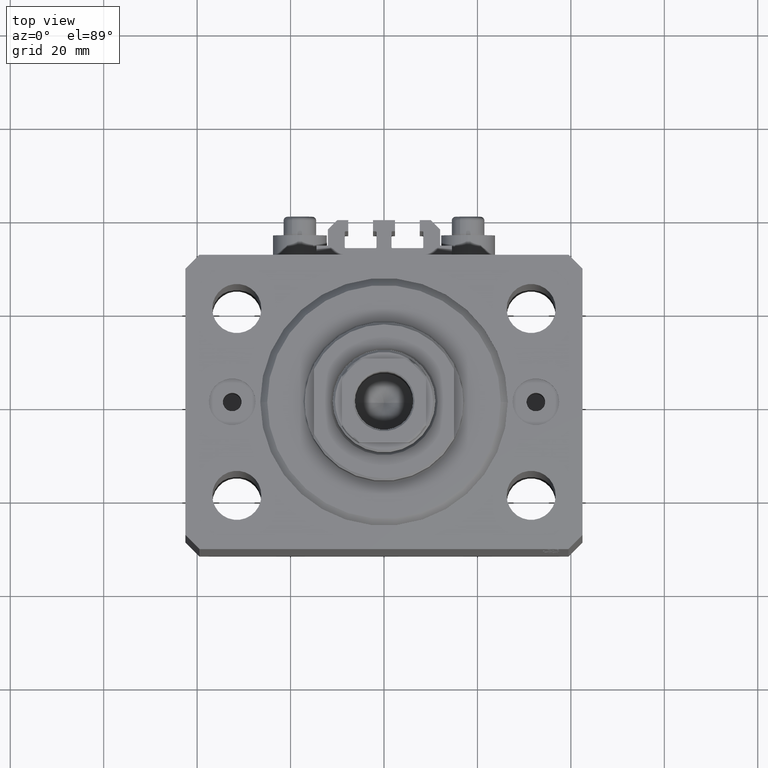
[diagram: clean part render]
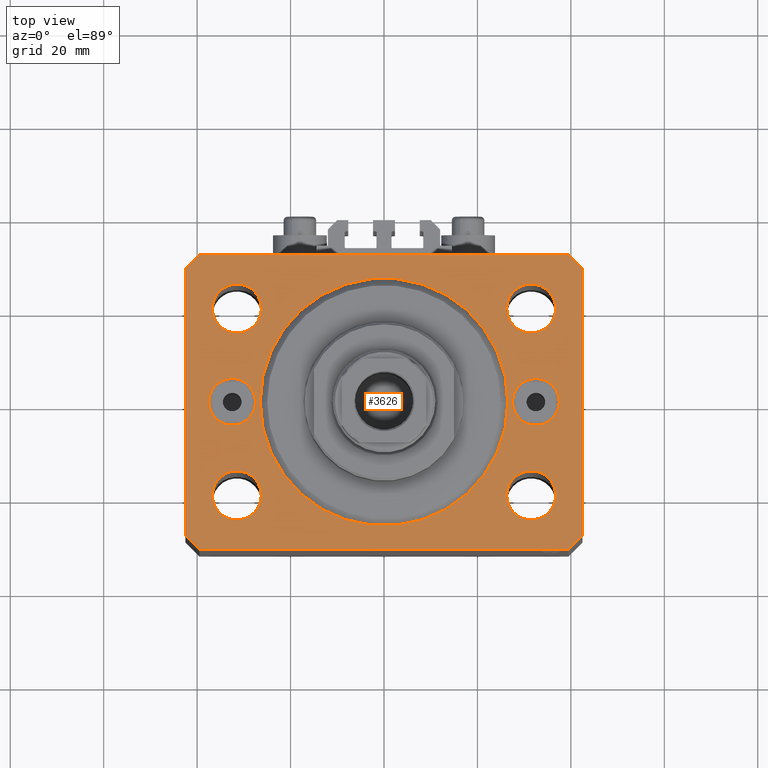
[diagram: same view with one face highlighted and labeled with its STEP entity id]
A machine part, top view. The second image highlights one B-rep face of the part: STEP entity #3626.
In plain terms, the highlighted planar face has unit normal (0, 0, 1).
Its self-contained STEP definition (entity closure, byte-faithful):
#164 = CARTESIAN_POINT ( 'NONE',  ( -32.50000000000000000, 0.000000000000000000, 0.000000000000000000 ) ) ;
#725 = CARTESIAN_POINT ( 'NONE',  ( 0.000000000000000000, 0.000000000000000000, 0.000000000000000000 ) ) ;
#971 = EDGE_LOOP ( 'NONE', ( #24869, #15122 ) ) ;
#1008 = DIRECTION ( 'NONE',  ( 0.000000000000000000, -1.000000000000000000, 0.000000000000000000 ) ) ;
#1458 = EDGE_LOOP ( 'NONE', ( #46129, #44589 ) ) ;
#1618 = FACE_BOUND ( 'NONE', #1458, .T. ) ;
#1659 = EDGE_CURVE ( 'NONE', #40867, #34058, #26651, .T. ) ;
#1775 = VERTEX_POINT ( 'NONE', #5637 ) ;
#2601 = EDGE_LOOP ( 'NONE', ( #7477, #24427 ) ) ;
#2643 = LINE ( 'NONE', #42512, #27260 ) ;
#2777 = CIRCLE ( 'NONE', #29477, 26.50000000000000355 ) ;
#2918 = AXIS2_PLACEMENT_3D ( 'NONE', #6823, #39538, #43102 ) ;
#3015 = EDGE_CURVE ( 'NONE', #44535, #19634, #2777, .T. ) ;
#3259 = DIRECTION ( 'NONE',  ( 0.7071067811865471286, -0.7071067811865479058, 0.000000000000000000 ) ) ;
#3272 = EDGE_CURVE ( 'NONE', #10373, #43415, #4355, .T. ) ;
#3476 = ORIENTED_EDGE ( 'NONE', *, *, #3272, .F. ) ;
#3531 = VECTOR ( 'NONE', #37872, 1000.000000000000000 ) ;
#3626 = ADVANCED_FACE ( 'NONE', ( #40574, #44368, #26225, #22649, #8565, #1618, #37690, #30039 ), #23114, .T. ) ;
#3753 = DIRECTION ( 'NONE',  ( 1.000000000000000000, 0.000000000000000000, 0.000000000000000000 ) ) ;
#4094 = DIRECTION ( 'NONE',  ( 1.000000000000000000, 0.000000000000000000, 0.000000000000000000 ) ) ;
#4221 = CARTESIAN_POINT ( 'NONE',  ( -31.50000000000000000, 19.99999999999999645, 0.000000000000000000 ) ) ;
#4355 = CIRCLE ( 'NONE', #41704, 5.250000000000000888 ) ;
#4672 = CARTESIAN_POINT ( 'NONE',  ( 31.49999999999999289, -20.00000000000000355, 0.000000000000000000 ) ) ;
#4714 = CIRCLE ( 'NONE', #39047, 4.999999999999997335 ) ;
#4734 = CARTESIAN_POINT ( 'NONE',  ( 0.000000000000000000, 0.000000000000000000, 0.000000000000000000 ) ) ;
#4960 = EDGE_CURVE ( 'NONE', #1775, #16814, #30316, .T. ) ;
#5158 = CIRCLE ( 'NONE', #42494, 4.999999999999997335 ) ;
#5233 = CARTESIAN_POINT ( 'NONE',  ( 42.50000000000000711, -28.50000000000000355, 0.000000000000000000 ) ) ;
#5253 = ORIENTED_EDGE ( 'NONE', *, *, #43827, .T. ) ;
#5425 = ORIENTED_EDGE ( 'NONE', *, *, #44760, .T. ) ;
#5450 = ORIENTED_EDGE ( 'NONE', *, *, #23910, .T. ) ;
#5637 = CARTESIAN_POINT ( 'NONE',  ( -37.50000000000000000, 6.123233995736768255E-16, 0.000000000000000000 ) ) ;
#5932 = DIRECTION ( 'NONE',  ( 0.7071067811865483499, 0.7071067811865466846, 0.000000000000000000 ) ) ;
#6823 = CARTESIAN_POINT ( 'NONE',  ( 31.50000000000000000, 19.99999999999999289, 0.000000000000000000 ) ) ;
#7327 = DIRECTION ( 'NONE',  ( 1.000000000000000000, 0.000000000000000000, 0.000000000000000000 ) ) ;
#7444 = CARTESIAN_POINT ( 'NONE',  ( -31.49999999999999289, -20.00000000000000355, 0.000000000000000000 ) ) ;
#7477 = ORIENTED_EDGE ( 'NONE', *, *, #33322, .F. ) ;
#7479 = CARTESIAN_POINT ( 'NONE',  ( -26.24999999999999289, -20.00000000000000355, 0.000000000000000000 ) ) ;
#7628 = EDGE_CURVE ( 'NONE', #30269, #44732, #29645, .T. ) ;
#7857 = CIRCLE ( 'NONE', #16245, 26.50000000000000355 ) ;
#8391 = DIRECTION ( 'NONE',  ( 1.000000000000000000, 0.000000000000000000, 0.000000000000000000 ) ) ;
#8565 = FACE_BOUND ( 'NONE', #45279, .T. ) ;
#8779 = VECTOR ( 'NONE', #19932, 1000.000000000000000 ) ;
#8906 = DIRECTION ( 'NONE',  ( 1.000000000000000000, 0.000000000000000000, 0.000000000000000000 ) ) ;
#9196 = EDGE_CURVE ( 'NONE', #21292, #46095, #39603, .T. ) ;
#9514 = CARTESIAN_POINT ( 'NONE',  ( -39.50000000000000711, -31.50000000000000000, 0.000000000000000000 ) ) ;
#9542 = ORIENTED_EDGE ( 'NONE', *, *, #23855, .F. ) ;
#9967 = VECTOR ( 'NONE', #8391, 1000.000000000000000 ) ;
#10114 = DIRECTION ( 'NONE',  ( 1.000000000000000000, 0.000000000000000000, 0.000000000000000000 ) ) ;
#10373 = VERTEX_POINT ( 'NONE', #7479 ) ;
#10602 = DIRECTION ( 'NONE',  ( 1.000000000000000000, 0.000000000000000000, 0.000000000000000000 ) ) ;
#10666 = CARTESIAN_POINT ( 'NONE',  ( 42.50000000000051870, 28.49999999999995381, 0.000000000000000000 ) ) ;
#10924 = CARTESIAN_POINT ( 'NONE',  ( -42.50000000000000000, -28.50000000000000000, 0.000000000000000000 ) ) ;
#10956 = CARTESIAN_POINT ( 'NONE',  ( -27.50000000000000000, 0.000000000000000000, 0.000000000000000000 ) ) ;
#11012 = CARTESIAN_POINT ( 'NONE',  ( -26.25000000000000000, 19.99999999999999645, 0.000000000000000000 ) ) ;
#11031 = CARTESIAN_POINT ( 'NONE',  ( 26.25000000000000355, 19.99999999999999289, 0.000000000000000000 ) ) ;
#11370 = CARTESIAN_POINT ( 'NONE',  ( 27.50000000000000355, 6.123233995736762338E-16, 0.000000000000000000 ) ) ;
#11383 = LINE ( 'NONE', #10666, #18399 ) ;
#11515 = ORIENTED_EDGE ( 'NONE', *, *, #29977, .T. ) ;
#11932 = CARTESIAN_POINT ( 'NONE',  ( 39.50000000000056843, 31.50000000000000000, 0.000000000000000000 ) ) ;
#12347 = EDGE_CURVE ( 'NONE', #36492, #37846, #32073, .T. ) ;
#12489 = CARTESIAN_POINT ( 'NONE',  ( 0.000000000000000000, 0.000000000000000000, 0.000000000000000000 ) ) ;
#13142 = LINE ( 'NONE', #23179, #9967 ) ;
#13657 = VECTOR ( 'NONE', #5932, 1000.000000000000000 ) ;
#13673 = ORIENTED_EDGE ( 'NONE', *, *, #33211, .T. ) ;
#13679 = CARTESIAN_POINT ( 'NONE',  ( 31.49999999999999289, -20.00000000000000355, 0.000000000000000000 ) ) ;
#14410 = ORIENTED_EDGE ( 'NONE', *, *, #41846, .T. ) ;
#14499 = CARTESIAN_POINT ( 'NONE',  ( 36.75000000000000000, 19.99999999999999289, 0.000000000000000000 ) ) ;
#14624 = AXIS2_PLACEMENT_3D ( 'NONE', #13679, #28233, #42792 ) ;
#14803 = ORIENTED_EDGE ( 'NONE', *, *, #4960, .F. ) ;
#15122 = ORIENTED_EDGE ( 'NONE', *, *, #9196, .F. ) ;
#15291 = CARTESIAN_POINT ( 'NONE',  ( -36.75000000000000000, 19.99999999999999645, 0.000000000000000000 ) ) ;
#15915 = EDGE_CURVE ( 'NONE', #37846, #36492, #18434, .T. ) ;
#15989 = AXIS2_PLACEMENT_3D ( 'NONE', #44727, #26598, #43810 ) ;
#16194 = CARTESIAN_POINT ( 'NONE',  ( 42.50000000000051870, 28.49999999999995381, 0.000000000000000000 ) ) ;
#16220 = CARTESIAN_POINT ( 'NONE',  ( 26.24999999999999645, -20.00000000000000355, 0.000000000000000000 ) ) ;
#16245 = AXIS2_PLACEMENT_3D ( 'NONE', #725, #37272, #37037 ) ;
#16516 = DIRECTION ( 'NONE',  ( -1.000000000000000000, 0.000000000000000000, 0.000000000000000000 ) ) ;
#16814 = VERTEX_POINT ( 'NONE', #10956 ) ;
#17128 = CARTESIAN_POINT ( 'NONE',  ( 37.50000000000000000, 0.000000000000000000, 0.000000000000000000 ) ) ;
#17463 = EDGE_CURVE ( 'NONE', #43415, #10373, #36805, .T. ) ;
#17647 = CARTESIAN_POINT ( 'NONE',  ( 26.50000000000000355, 0.000000000000000000, 0.000000000000000000 ) ) ;
#18399 = VECTOR ( 'NONE', #43356, 1000.000000000000114 ) ;
#18434 = CIRCLE ( 'NONE', #14624, 5.249999999999997335 ) ;
#18527 = EDGE_LOOP ( 'NONE', ( #25829, #14410 ) ) ;
#18561 = DIRECTION ( 'NONE',  ( 0.000000000000000000, 0.000000000000000000, 1.000000000000000000 ) ) ;
#18660 = EDGE_CURVE ( 'NONE', #19634, #44535, #7857, .T. ) ;
#19239 = DIRECTION ( 'NONE',  ( 0.000000000000000000, 0.000000000000000000, 1.000000000000000000 ) ) ;
#19452 = CARTESIAN_POINT ( 'NONE',  ( 42.50000000000000711, -28.50000000000000355, 0.000000000000000000 ) ) ;
#19634 = VERTEX_POINT ( 'NONE', #24468 ) ;
#19880 = CARTESIAN_POINT ( 'NONE',  ( -42.50000000000000000, 28.50000000000000000, 0.000000000000000000 ) ) ;
#19932 = DIRECTION ( 'NONE',  ( 8.886653596232072440E-15, 1.000000000000000000, 0.000000000000000000 ) ) ;
#21228 = ORIENTED_EDGE ( 'NONE', *, *, #15915, .F. ) ;
#21292 = VERTEX_POINT ( 'NONE', #15291 ) ;
#21379 = DIRECTION ( 'NONE',  ( 0.000000000000000000, 0.000000000000000000, 1.000000000000000000 ) ) ;
#21902 = CARTESIAN_POINT ( 'NONE',  ( 31.50000000000000000, 19.99999999999999289, 0.000000000000000000 ) ) ;
#22310 = AXIS2_PLACEMENT_3D ( 'NONE', #35439, #28727, #10602 ) ;
#22649 = FACE_BOUND ( 'NONE', #36307, .T. ) ;
#22912 = AXIS2_PLACEMENT_3D ( 'NONE', #21902, #40054, #3753 ) ;
#23094 = DIRECTION ( 'NONE',  ( 0.000000000000000000, -0.000000000000000000, -1.000000000000000000 ) ) ;
#23114 = PLANE ( 'NONE',  #31837 ) ;
#23179 = CARTESIAN_POINT ( 'NONE',  ( -39.50000000000000711, -31.50000000000000000, 0.000000000000000000 ) ) ;
#23207 = VECTOR ( 'NONE', #3259, 1000.000000000000000 ) ;
#23213 = LINE ( 'NONE', #19880, #28165 ) ;
#23341 = DIRECTION ( 'NONE',  ( 1.000000000000000000, 0.000000000000000000, -0.000000000000000000 ) ) ;
#23561 = DIRECTION ( 'NONE',  ( 1.000000000000000000, 0.000000000000000000, 0.000000000000000000 ) ) ;
#23645 = CARTESIAN_POINT ( 'NONE',  ( -42.50000000000000000, -28.50000000000000000, 0.000000000000000000 ) ) ;
#23855 = EDGE_CURVE ( 'NONE', #16814, #1775, #27021, .T. ) ;
#23910 = EDGE_CURVE ( 'NONE', #34098, #27560, #32889, .T. ) ;
#23928 = ORIENTED_EDGE ( 'NONE', *, *, #28442, .T. ) ;
#24145 = DIRECTION ( 'NONE',  ( 0.000000000000000000, 0.000000000000000000, 1.000000000000000000 ) ) ;
#24221 = DIRECTION ( 'NONE',  ( 1.000000000000000000, 0.000000000000000000, 0.000000000000000000 ) ) ;
#24427 = ORIENTED_EDGE ( 'NONE', *, *, #7628, .F. ) ;
#24468 = CARTESIAN_POINT ( 'NONE',  ( -26.50000000000000355, 3.245314017740486554E-15, 0.000000000000000000 ) ) ;
#24869 = ORIENTED_EDGE ( 'NONE', *, *, #33475, .F. ) ;
#25195 = CIRCLE ( 'NONE', #22912, 5.249999999999997335 ) ;
#25829 = ORIENTED_EDGE ( 'NONE', *, *, #46189, .T. ) ;
#25846 = VERTEX_POINT ( 'NONE', #17128 ) ;
#26225 = FACE_BOUND ( 'NONE', #2601, .T. ) ;
#26598 = DIRECTION ( 'NONE',  ( 0.000000000000000000, 0.000000000000000000, 1.000000000000000000 ) ) ;
#26651 = LINE ( 'NONE', #44551, #3531 ) ;
#26894 = CARTESIAN_POINT ( 'NONE',  ( 32.50000000000000000, 0.000000000000000000, 0.000000000000000000 ) ) ;
#27021 = CIRCLE ( 'NONE', #30088, 5.000000000000000888 ) ;
#27260 = VECTOR ( 'NONE', #16516, 1000.000000000000000 ) ;
#27308 = CARTESIAN_POINT ( 'NONE',  ( 36.74999999999999289, -20.00000000000000355, 0.000000000000000000 ) ) ;
#27508 = AXIS2_PLACEMENT_3D ( 'NONE', #4221, #40528, #41449 ) ;
#27560 = VERTEX_POINT ( 'NONE', #9514 ) ;
#27658 = CARTESIAN_POINT ( 'NONE',  ( 39.50000000000000711, -31.50000000000000000, 0.000000000000000000 ) ) ;
#28165 = VECTOR ( 'NONE', #1008, 1000.000000000000000 ) ;
#28233 = DIRECTION ( 'NONE',  ( 0.000000000000000000, 0.000000000000000000, 1.000000000000000000 ) ) ;
#28418 = EDGE_LOOP ( 'NONE', ( #29491, #42628, #11515, #5450, #13673, #23928, #5253, #5425 ) ) ;
#28442 = EDGE_CURVE ( 'NONE', #37939, #35405, #41293, .T. ) ;
#28727 = DIRECTION ( 'NONE',  ( 0.000000000000000000, 0.000000000000000000, 1.000000000000000000 ) ) ;
#28884 = ORIENTED_EDGE ( 'NONE', *, *, #17463, .F. ) ;
#29477 = AXIS2_PLACEMENT_3D ( 'NONE', #12489, #24145, #8906 ) ;
#29491 = ORIENTED_EDGE ( 'NONE', *, *, #42130, .T. ) ;
#29645 = CIRCLE ( 'NONE', #2918, 5.249999999999997335 ) ;
#29977 = EDGE_CURVE ( 'NONE', #34058, #34098, #23213, .T. ) ;
#30039 = FACE_BOUND ( 'NONE', #18527, .T. ) ;
#30088 = AXIS2_PLACEMENT_3D ( 'NONE', #164, #18561, #7327 ) ;
#30269 = VERTEX_POINT ( 'NONE', #11031 ) ;
#30316 = CIRCLE ( 'NONE', #33371, 5.000000000000000888 ) ;
#30352 = ORIENTED_EDGE ( 'NONE', *, *, #12347, .F. ) ;
#30709 = DIRECTION ( 'NONE',  ( 0.000000000000000000, -0.000000000000000000, -1.000000000000000000 ) ) ;
#31837 = AXIS2_PLACEMENT_3D ( 'NONE', #4734, #34569, #23341 ) ;
#32073 = CIRCLE ( 'NONE', #33602, 5.249999999999997335 ) ;
#32099 = CIRCLE ( 'NONE', #27508, 5.250000000000000888 ) ;
#32889 = LINE ( 'NONE', #10924, #23207 ) ;
#33046 = CARTESIAN_POINT ( 'NONE',  ( 39.50000000000000711, -31.50000000000000000, 0.000000000000000000 ) ) ;
#33211 = EDGE_CURVE ( 'NONE', #27560, #37939, #13142, .T. ) ;
#33234 = DIRECTION ( 'NONE',  ( 0.000000000000000000, 0.000000000000000000, 1.000000000000000000 ) ) ;
#33322 = EDGE_CURVE ( 'NONE', #44732, #30269, #25195, .T. ) ;
#33342 = DIRECTION ( 'NONE',  ( 1.000000000000000000, 0.000000000000000000, 0.000000000000000000 ) ) ;
#33371 = AXIS2_PLACEMENT_3D ( 'NONE', #42378, #21379, #24221 ) ;
#33475 = EDGE_CURVE ( 'NONE', #46095, #21292, #32099, .T. ) ;
#33602 = AXIS2_PLACEMENT_3D ( 'NONE', #4672, #19239, #33342 ) ;
#33890 = EDGE_LOOP ( 'NONE', ( #9542, #14803 ) ) ;
#34058 = VERTEX_POINT ( 'NONE', #34869 ) ;
#34098 = VERTEX_POINT ( 'NONE', #23645 ) ;
#34569 = DIRECTION ( 'NONE',  ( 0.000000000000000000, 0.000000000000000000, 1.000000000000000000 ) ) ;
#34869 = CARTESIAN_POINT ( 'NONE',  ( -42.50000000000000000, 28.50000000000000000, 0.000000000000000000 ) ) ;
#35405 = VERTEX_POINT ( 'NONE', #5233 ) ;
#35439 = CARTESIAN_POINT ( 'NONE',  ( -31.49999999999999289, -20.00000000000000355, 0.000000000000000000 ) ) ;
#36307 = EDGE_LOOP ( 'NONE', ( #21228, #30352 ) ) ;
#36492 = VERTEX_POINT ( 'NONE', #16220 ) ;
#36805 = CIRCLE ( 'NONE', #22310, 5.250000000000000888 ) ;
#37037 = DIRECTION ( 'NONE',  ( 1.000000000000000000, 0.000000000000000000, 0.000000000000000000 ) ) ;
#37272 = DIRECTION ( 'NONE',  ( 0.000000000000000000, 0.000000000000000000, 1.000000000000000000 ) ) ;
#37690 = FACE_BOUND ( 'NONE', #33890, .T. ) ;
#37846 = VERTEX_POINT ( 'NONE', #27308 ) ;
#37872 = DIRECTION ( 'NONE',  ( -0.7071067811865471286, -0.7071067811865479058, 0.000000000000000000 ) ) ;
#37939 = VERTEX_POINT ( 'NONE', #33046 ) ;
#38723 = CARTESIAN_POINT ( 'NONE',  ( -39.50000000000000711, 31.50000000000000000, 0.000000000000000000 ) ) ;
#39047 = AXIS2_PLACEMENT_3D ( 'NONE', #41705, #23094, #23561 ) ;
#39538 = DIRECTION ( 'NONE',  ( 0.000000000000000000, 0.000000000000000000, 1.000000000000000000 ) ) ;
#39603 = CIRCLE ( 'NONE', #15989, 5.250000000000000888 ) ;
#39650 = VERTEX_POINT ( 'NONE', #11370 ) ;
#40054 = DIRECTION ( 'NONE',  ( 0.000000000000000000, 0.000000000000000000, 1.000000000000000000 ) ) ;
#40528 = DIRECTION ( 'NONE',  ( 0.000000000000000000, 0.000000000000000000, 1.000000000000000000 ) ) ;
#40574 = FACE_OUTER_BOUND ( 'NONE', #28418, .T. ) ;
#40867 = VERTEX_POINT ( 'NONE', #38723 ) ;
#41001 = CARTESIAN_POINT ( 'NONE',  ( -36.74999999999999289, -20.00000000000000355, 0.000000000000000000 ) ) ;
#41293 = LINE ( 'NONE', #27658, #13657 ) ;
#41417 = LINE ( 'NONE', #19452, #8779 ) ;
#41449 = DIRECTION ( 'NONE',  ( 1.000000000000000000, 0.000000000000000000, 0.000000000000000000 ) ) ;
#41704 = AXIS2_PLACEMENT_3D ( 'NONE', #7444, #33234, #4094 ) ;
#41705 = CARTESIAN_POINT ( 'NONE',  ( 32.50000000000000000, 0.000000000000000000, 0.000000000000000000 ) ) ;
#41846 = EDGE_CURVE ( 'NONE', #39650, #25846, #5158, .T. ) ;
#42130 = EDGE_CURVE ( 'NONE', #44427, #40867, #2643, .T. ) ;
#42378 = CARTESIAN_POINT ( 'NONE',  ( -32.50000000000000000, 0.000000000000000000, 0.000000000000000000 ) ) ;
#42494 = AXIS2_PLACEMENT_3D ( 'NONE', #26894, #30709, #10114 ) ;
#42512 = CARTESIAN_POINT ( 'NONE',  ( 39.50000000000056843, 31.50000000000000000, 0.000000000000000000 ) ) ;
#42628 = ORIENTED_EDGE ( 'NONE', *, *, #1659, .T. ) ;
#42792 = DIRECTION ( 'NONE',  ( 1.000000000000000000, 0.000000000000000000, 0.000000000000000000 ) ) ;
#43102 = DIRECTION ( 'NONE',  ( 1.000000000000000000, 0.000000000000000000, 0.000000000000000000 ) ) ;
#43356 = DIRECTION ( 'NONE',  ( -0.7071067811865356934, 0.7071067811865594521, 0.000000000000000000 ) ) ;
#43415 = VERTEX_POINT ( 'NONE', #41001 ) ;
#43810 = DIRECTION ( 'NONE',  ( 1.000000000000000000, 0.000000000000000000, 0.000000000000000000 ) ) ;
#43827 = EDGE_CURVE ( 'NONE', #35405, #45269, #41417, .T. ) ;
#44368 = FACE_BOUND ( 'NONE', #971, .T. ) ;
#44427 = VERTEX_POINT ( 'NONE', #11932 ) ;
#44535 = VERTEX_POINT ( 'NONE', #17647 ) ;
#44551 = CARTESIAN_POINT ( 'NONE',  ( -39.50000000000000711, 31.50000000000000000, 0.000000000000000000 ) ) ;
#44589 = ORIENTED_EDGE ( 'NONE', *, *, #18660, .F. ) ;
#44727 = CARTESIAN_POINT ( 'NONE',  ( -31.50000000000000000, 19.99999999999999645, 0.000000000000000000 ) ) ;
#44732 = VERTEX_POINT ( 'NONE', #14499 ) ;
#44760 = EDGE_CURVE ( 'NONE', #45269, #44427, #11383, .T. ) ;
#45269 = VERTEX_POINT ( 'NONE', #16194 ) ;
#45279 = EDGE_LOOP ( 'NONE', ( #3476, #28884 ) ) ;
#46095 = VERTEX_POINT ( 'NONE', #11012 ) ;
#46129 = ORIENTED_EDGE ( 'NONE', *, *, #3015, .F. ) ;
#46189 = EDGE_CURVE ( 'NONE', #25846, #39650, #4714, .T. ) ;